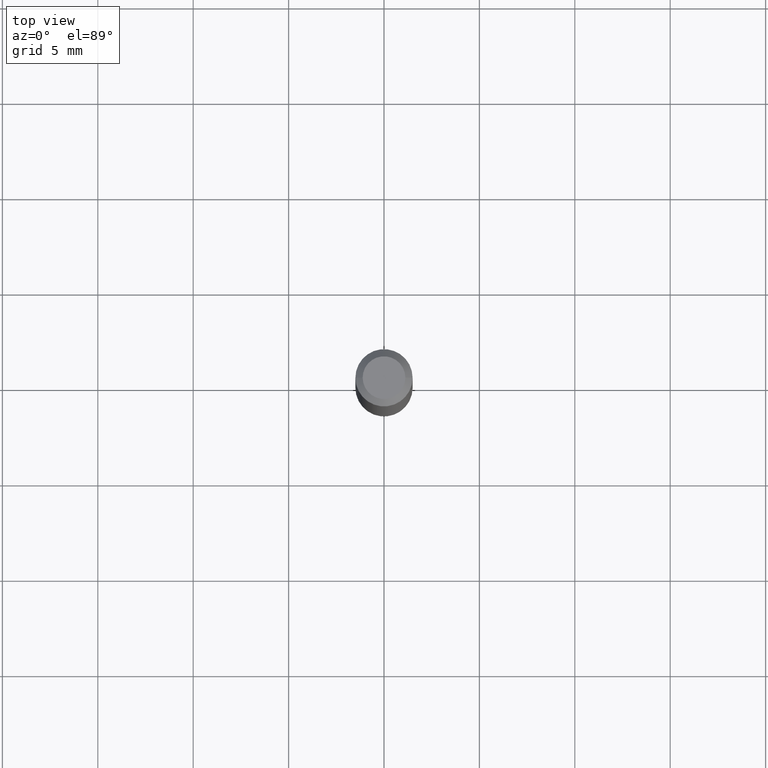
[diagram: clean part render]
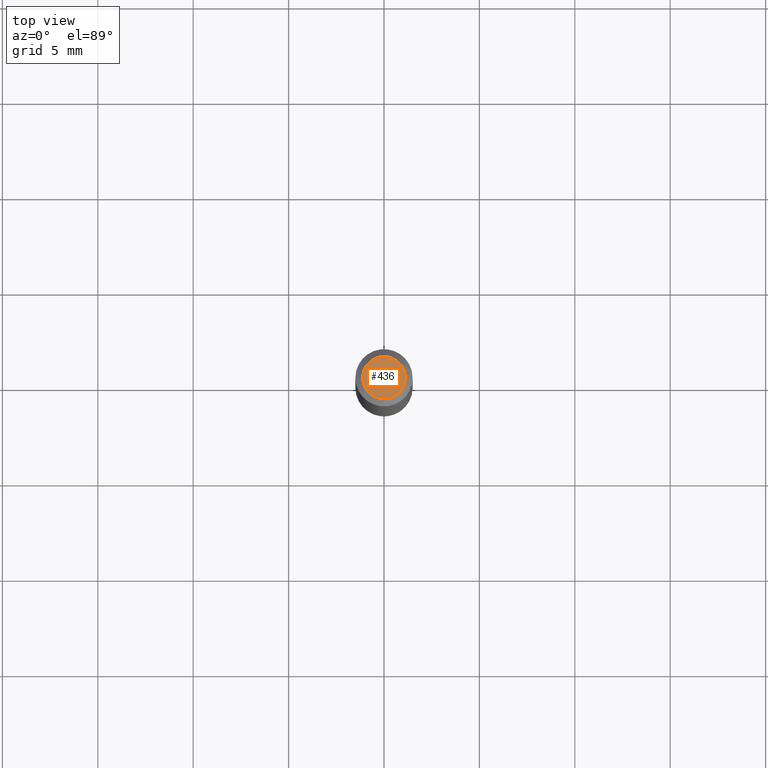
[diagram: same view with one face highlighted and labeled with its STEP entity id]
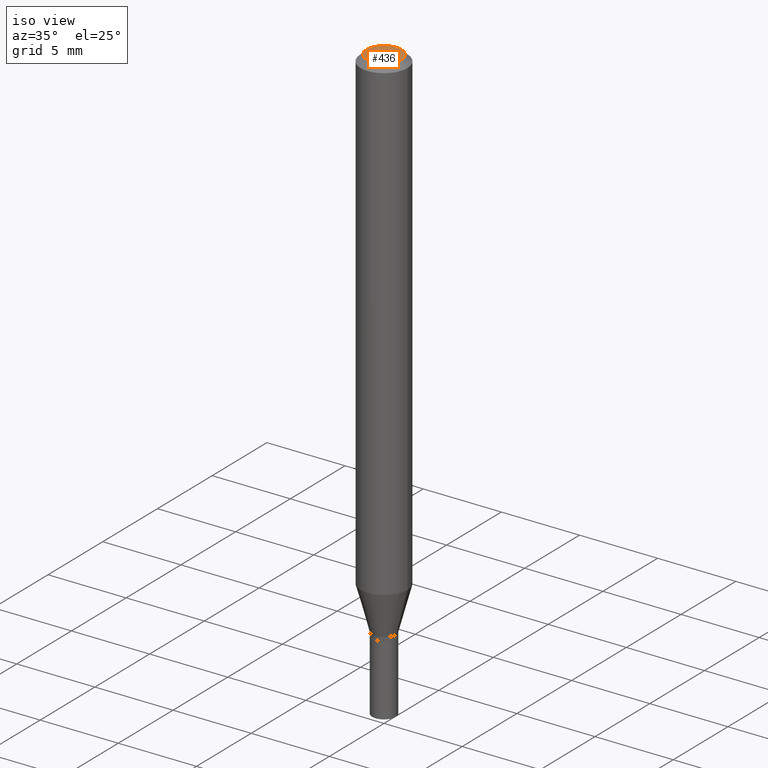
[diagram: same view with one face highlighted and labeled with its STEP entity id]
A machine part, top view. The second image highlights one B-rep face of the part: STEP entity #436.
A second angle (iso view) of the same face is appended — the face is thin or edge-on in the first view.
In plain terms, the highlighted planar face has unit normal (0, -0, -1).
Its self-contained STEP definition (entity closure, byte-faithful):
#18 = CARTESIAN_POINT ( 'NONE',  ( -8.641182519006289553E-45, 1.233731848647591164E-30, 3.533548453838711334E-16 ) ) ;
#25 = VERTEX_POINT ( 'NONE', #175 ) ;
#30 = EDGE_CURVE ( 'NONE', #356, #25, #156, .T. ) ;
#113 = EDGE_CURVE ( 'NONE', #25, #356, #331, .T. ) ;
#156 = CIRCLE ( 'NONE', #423, 0.04404999999999999888 ) ;
#163 = DIRECTION ( 'NONE',  ( 1.000000000000000000, -6.982962677686265922E-15, 4.819687581474398999E-29 ) ) ;
#175 = CARTESIAN_POINT ( 'NONE',  ( -0.04404999999999999888, 3.337856159934041534E-16, 3.533548453838689148E-16 ) ) ;
#240 = ORIENTED_EDGE ( 'NONE', *, *, #30, .T. ) ;
#258 = CARTESIAN_POINT ( 'NONE',  ( -8.641182519006289553E-45, 1.233731848647591164E-30, 3.533548453838711334E-16 ) ) ;
#259 = DIRECTION ( 'NONE',  ( 2.438088387897960049E-29, -3.491481338843145188E-15, -1.000000000000000000 ) ) ;
#260 = DIRECTION ( 'NONE',  ( 1.000000000000000000, -6.982962677686265922E-15, 4.819687581474398999E-29 ) ) ;
#267 = DIRECTION ( 'NONE',  ( -2.445468806185136597E-29, 3.491481338843145583E-15, 1.000000000000000000 ) ) ;
#276 = PLANE ( 'NONE',  #453 ) ;
#291 = CARTESIAN_POINT ( 'NONE',  ( 3.075995059520799729E-16, 0.04404999999999999888, 2.287766971589501637E-17 ) ) ;
#331 = CIRCLE ( 'NONE', #441, 0.04404999999999999888 ) ;
#334 = DIRECTION ( 'NONE',  ( -2.445468806185136597E-29, 3.491481338843145583E-15, 1.000000000000000000 ) ) ;
#356 = VERTEX_POINT ( 'NONE', #379 ) ;
#379 = CARTESIAN_POINT ( 'NONE',  ( 0.04404999999999999888, -3.798447818264455642E-16, 3.533548453838735986E-16 ) ) ;
#397 = FACE_OUTER_BOUND ( 'NONE', #456, .T. ) ;
#417 = DIRECTION ( 'NONE',  ( -1.000000000000000000, 6.982962677686265922E-15, -4.876176775795935793E-29 ) ) ;
#418 = ORIENTED_EDGE ( 'NONE', *, *, #113, .T. ) ;
#423 = AXIS2_PLACEMENT_3D ( 'NONE', #258, #334, #260 ) ;
#436 = ADVANCED_FACE ( 'NONE', ( #397 ), #276, .F. ) ;
#441 = AXIS2_PLACEMENT_3D ( 'NONE', #18, #267, #163 ) ;
#453 = AXIS2_PLACEMENT_3D ( 'NONE', #291, #259, #417 ) ;
#456 = EDGE_LOOP ( 'NONE', ( #418, #240 ) ) ;